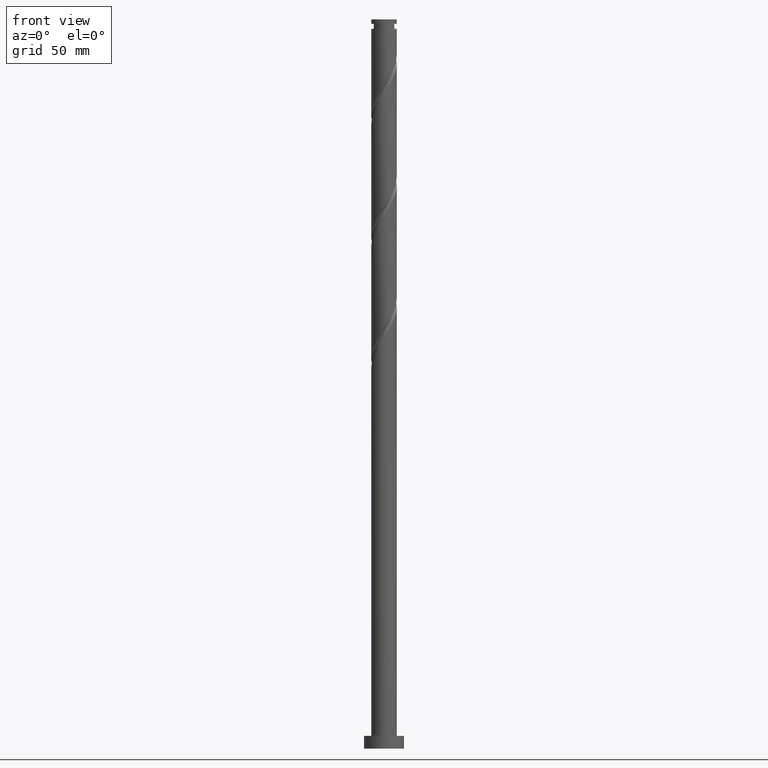
[diagram: clean part render]
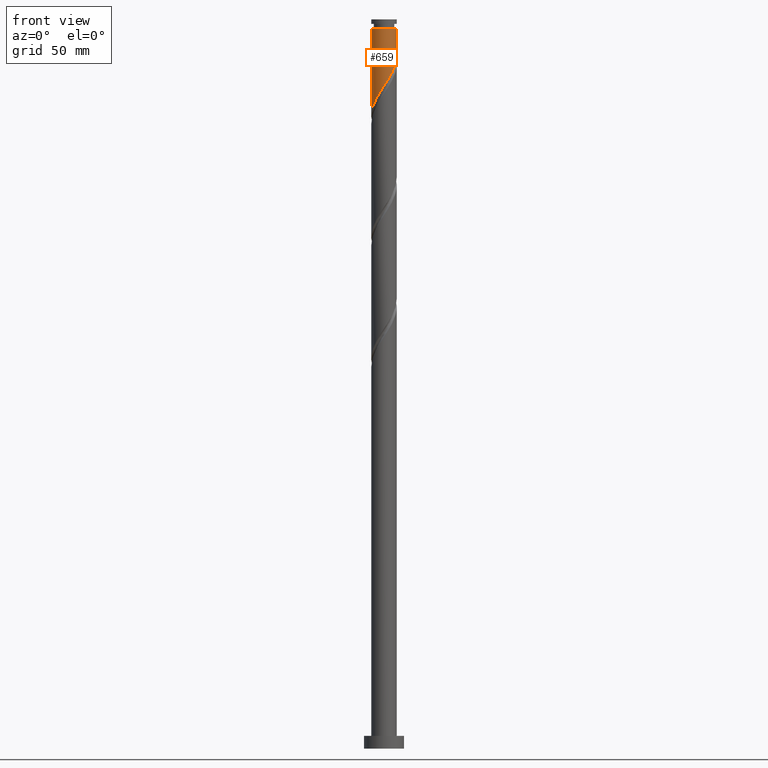
[diagram: same view with one face highlighted and labeled with its STEP entity id]
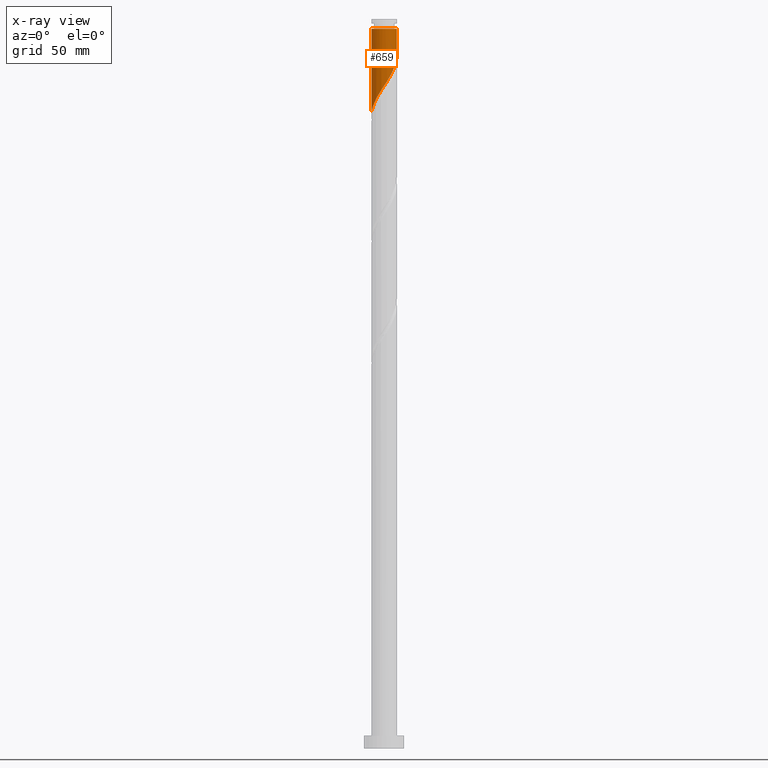
[diagram: x-ray of the same camera — body ghosted, the highlighted face saturated]
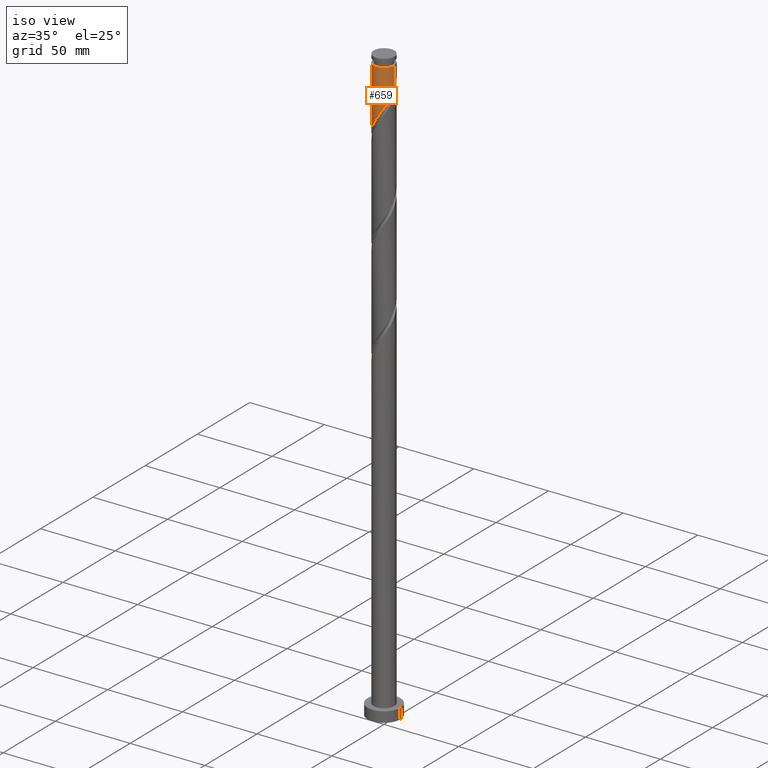
[diagram: same view with one face highlighted and labeled with its STEP entity id]
A machine part, front view. The second image highlights one B-rep face of the part: STEP entity #659.
The next image is the same camera in x-ray: the body ghosted, the highlighted face saturated — about 0% of this face is hidden behind the body in this view.
A second angle (iso view) of the same face is appended — the face is thin or edge-on in the first view.
In plain terms, the highlighted cylindrical surface (edge-blend (fillet) strip) has radius 7 mm, axis along (-0, -0, -1).
Its self-contained STEP definition (entity closure, byte-faithful):
#13 = DIRECTION ( 'NONE',  ( -0.000000000000000000, -0.000000000000000000, -1.000000000000000000 ) ) ;
#29 = VECTOR ( 'NONE', #183, 1000.000000000000000 ) ;
#107 = CARTESIAN_POINT ( 'NONE',  ( 5.244443063986611087, -4.636358155772994039, 372.5440071554490373 ) ) ;
#112 = VERTEX_POINT ( 'NONE', #1728 ) ;
#117 = CARTESIAN_POINT ( 'NONE',  ( 5.731743942366910538, -4.085144978138298910, 373.6551182665601232 ) ) ;
#136 = CARTESIAN_POINT ( 'NONE',  ( -6.637425475935885721, -2.223641844227008946, 350.3217849332268088 ) ) ;
#183 = DIRECTION ( 'NONE',  ( -0.000000000000000000, -0.000000000000000000, -1.000000000000000000 ) ) ;
#248 = CARTESIAN_POINT ( 'NONE',  ( -1.392982411949273525, -6.859999999999999432, 361.4328960443378946 ) ) ;
#271 = CARTESIAN_POINT ( 'NONE',  ( 6.897786797805721903, -1.400655348501352204, 378.0995627110045803 ) ) ;
#272 = CARTESIAN_POINT ( 'NONE',  ( -6.999999999999965361, 0.000000000000000000, 394.7662293776712659 ) ) ;
#279 = CARTESIAN_POINT ( 'NONE',  ( 4.165886336820081581, -5.625423631042891337, 370.3217849332267519 ) ) ;
#301 = VERTEX_POINT ( 'NONE', #1668 ) ;
#383 = ORIENTED_EDGE ( 'NONE', *, *, #390, .F. ) ;
#390 = EDGE_CURVE ( 'NONE', #917, #112, #1505, .T. ) ;
#401 = CARTESIAN_POINT ( 'NONE',  ( 2.235890285154144230, -6.673986271039347606, 366.9884515998934376 ) ) ;
#419 = CARTESIAN_POINT ( 'NONE',  ( -4.661896512651579449, -5.273330922537993182, 355.8773404887822949 ) ) ;
#439 = CARTESIAN_POINT ( 'NONE',  ( 1.517660616487694236, -6.833498829528121377, 365.8773404887822949 ) ) ;
#486 = CARTESIAN_POINT ( 'NONE',  ( -6.030060668729767315, -3.555048288200643114, 352.5440071554489805 ) ) ;
#498 = CYLINDRICAL_SURFACE ( 'NONE', #1644, 7.000000000000000888 ) ;
#531 = DIRECTION ( 'NONE',  ( -1.000000000000000000, 0.000000000000000000, 0.000000000000000000 ) ) ;
#568 = CARTESIAN_POINT ( 'NONE',  ( -2.113997465871814363, -6.713591648853533655, 360.3217849332268088 ) ) ;
#600 = CARTESIAN_POINT ( 'NONE',  ( -6.871139651478124222, -1.526020315445849374, 349.2106738221157229 ) ) ;
#659 = ADVANCED_FACE ( 'NONE', ( #1879 ), #498, .T. ) ;
#724 = CARTESIAN_POINT ( 'NONE',  ( 2.905260386593998323, -6.368631099858720113, 368.0995627110045803 ) ) ;
#734 = CARTESIAN_POINT ( 'NONE',  ( 7.000000000000001776, 2.840198929926419471E-15, 380.2250059545260683 ) ) ;
#750 = ORIENTED_EDGE ( 'NONE', *, *, #1182, .T. ) ;
#772 = EDGE_CURVE ( 'NONE', #112, #301, #1252, .T. ) ;
#788 = CARTESIAN_POINT ( 'NONE',  ( -5.159153274858732097, -4.731082062965556112, 354.7662293776713227 ) ) ;
#849 = CARTESIAN_POINT ( 'NONE',  ( -7.000000000000000888, 3.916484840214325626E-15, 346.8916726211926971 ) ) ;
#858 = CARTESIAN_POINT ( 'NONE',  ( -4.062766126512282305, -5.700344849328362606, 356.9884515998935512 ) ) ;
#870 = DIRECTION ( 'NONE',  ( -0.000000000000000000, -0.000000000000000000, -1.000000000000000000 ) ) ;
#893 = CARTESIAN_POINT ( 'NONE',  ( 4.757142185606310747, -5.187571333407684726, 371.4328960443378378 ) ) ;
#917 = VERTEX_POINT ( 'NONE', #1450 ) ;
#950 = CARTESIAN_POINT ( 'NONE',  ( -7.000000000000000888, 0.000000000000000000, 400.0000000000000000 ) ) ;
#973 = LINE ( 'NONE', #950, #29 ) ;
#989 = DIRECTION ( 'NONE',  ( -0.000000000000000000, -0.000000000000000000, -1.000000000000000000 ) ) ;
#1006 = CARTESIAN_POINT ( 'NONE',  ( 0.06373179489725674940, -6.999709869581680621, 363.6551182665601232 ) ) ;
#1023 = CARTESIAN_POINT ( 'NONE',  ( 7.000000000000000888, 8.572527594031474176E-16, 400.0000000000000000 ) ) ;
#1037 = EDGE_CURVE ( 'NONE', #1636, #301, #973, .T. ) ;
#1042 = ORIENTED_EDGE ( 'NONE', *, *, #772, .F. ) ;
#1046 = CARTESIAN_POINT ( 'NONE',  ( 0.7994309478212480169, -6.993011388016896035, 364.7662293776712090 ) ) ;
#1142 = EDGE_LOOP ( 'NONE', ( #383, #750, #1200, #1042 ) ) ;
#1157 = CARTESIAN_POINT ( 'NONE',  ( 6.999999999999999112, -0.3349079950072628709, 379.7164574289619736 ) ) ;
#1167 = CARTESIAN_POINT ( 'NONE',  ( 6.676813891346426999, -2.102416766562567485, 376.9884515998934944 ) ) ;
#1182 = EDGE_CURVE ( 'NONE', #917, #1636, #1903, .T. ) ;
#1196 = CARTESIAN_POINT ( 'NONE',  ( 6.093792463627021760, -3.444661581381036175, 374.7662293776712090 ) ) ;
#1200 = ORIENTED_EDGE ( 'NONE', *, *, #1037, .T. ) ;
#1252 =( BOUNDED_CURVE ( )  B_SPLINE_CURVE ( 2, ( #734, #1157, #1975, #271, #1167, #1777, #1196, #117, #107, #893, #279, #1820, #724, #401, #439, #1046, #1006, #1629, #248, #568, #1797, #1338, #858, #419, #788, #1548, #486, #1394, #136, #600, #1924, #1959, #849 ),
 .UNSPECIFIED., .F., .T. ) 
 B_SPLINE_CURVE_WITH_KNOTS ( ( 3, 2, 2, 2, 2, 2, 2, 2, 2, 2, 2, 2, 2, 2, 2, 2, 3 ),
 ( 0.3045286012773115725, 0.3083333333333333481, 0.3166666666666666519, 0.3250000000000000111, 0.3333333333333333148, 0.3416666666666666741, 0.3499999999999999778, 0.3583333333333333370, 0.3666666666666666408, 0.3750000000000000000, 0.3833333333333333592, 0.3916666666666666630, 0.4000000000000000222, 0.4083333333333333259, 0.4166666666666666852, 0.4249999999999999889, 0.4295286012773115725 ),
 .UNSPECIFIED. ) 
 CURVE ( )  GEOMETRIC_REPRESENTATION_ITEM ( )  RATIONAL_B_SPLINE_CURVE ( ( 0.9066196499552172661, 0.9068171577856301013, 0.9090909090909288226, 0.9041108139711772074, 0.9090909090909288226, 0.9041108139711772074, 0.9090909090909288226, 0.9041108139711772074, 0.9090909090909288226, 0.9041108139711772074, 0.9090909090909288226, 0.9041108139711772074, 0.9090909090909288226, 0.9041108139711772074, 0.9090909090909288226, 0.9041108139711772074, 0.9090909090909288226, 0.9041108139711772074, 0.9090909090909288226, 0.9041108139711772074, 0.9090909090909288226, 0.9041108139711772074, 0.9090909090909288226, 0.9041108139711772074, 0.9090909090909288226, 0.9041108139711772074, 0.9090909090909288226, 0.9041108139711772074, 0.9090909090909288226, 0.9041108139711772074, 0.9090909090909288226, 0.9063845652764759286, 0.9066196499552172661 ) ) 
 REPRESENTATION_ITEM ( '' )  );
#1338 = CARTESIAN_POINT ( 'NONE',  ( -3.463635740372986049, -6.127358776118730255, 358.0995627110045234 ) ) ;
#1394 = CARTESIAN_POINT ( 'NONE',  ( -6.403711300393647221, -2.921263373008168962, 351.4328960443378378 ) ) ;
#1442 = CARTESIAN_POINT ( 'NONE',  ( 0.000000000000000000, 0.000000000000000000, 394.7662293776712659 ) ) ;
#1450 = CARTESIAN_POINT ( 'NONE',  ( 6.999999999999965361, 8.572527594031451496E-16, 394.7662293776712659 ) ) ;
#1505 = LINE ( 'NONE', #1023, #1963 ) ;
#1548 = CARTESIAN_POINT ( 'NONE',  ( -5.656410037065885632, -4.188833203393120819, 353.6551182665602369 ) ) ;
#1612 = DIRECTION ( 'NONE',  ( -1.000000000000000000, 0.000000000000000000, 0.000000000000000000 ) ) ;
#1629 = CARTESIAN_POINT ( 'NONE',  ( -0.6719673580267349067, -7.006408351146466984, 362.5440071554491510 ) ) ;
#1636 = VERTEX_POINT ( 'NONE', #272 ) ;
#1644 = AXIS2_PLACEMENT_3D ( 'NONE', #1721, #13, #531 ) ;
#1668 = CARTESIAN_POINT ( 'NONE',  ( -7.000000000000000888, 3.916484840214325626E-15, 346.8916726211927539 ) ) ;
#1721 = CARTESIAN_POINT ( 'NONE',  ( 0.000000000000000000, 0.000000000000000000, 400.0000000000000000 ) ) ;
#1728 = CARTESIAN_POINT ( 'NONE',  ( 7.000000000000001776, 2.840198929926419471E-15, 380.2250059545260683 ) ) ;
#1777 = CARTESIAN_POINT ( 'NONE',  ( 6.455840984887133871, -2.804178184623777437, 375.8773404887824086 ) ) ;
#1797 = CARTESIAN_POINT ( 'NONE',  ( -2.788816603122402427, -6.420475212486133287, 359.2106738221156093 ) ) ;
#1820 = CARTESIAN_POINT ( 'NONE',  ( 3.574630488033851972, -6.063275928678096172, 369.2106738221156661 ) ) ;
#1865 = AXIS2_PLACEMENT_3D ( 'NONE', #1442, #989, #1612 ) ;
#1879 = FACE_OUTER_BOUND ( 'NONE', #1142, .T. ) ;
#1903 = CIRCLE ( 'NONE', #1865, 6.999999999999965361 ) ;
#1924 = CARTESIAN_POINT ( 'NONE',  ( -6.954702939942481343, -0.7950515814432431716, 348.0995627110045803 ) ) ;
#1959 = CARTESIAN_POINT ( 'NONE',  ( -7.000000000000004441, -0.3988161621250160271, 347.4972639305773896 ) ) ;
#1963 = VECTOR ( 'NONE', #870, 1000.000000000000000 ) ;
#1975 = CARTESIAN_POINT ( 'NONE',  ( 6.968026513106281961, -0.6682862505303600598, 379.2106738221157229 ) ) ;